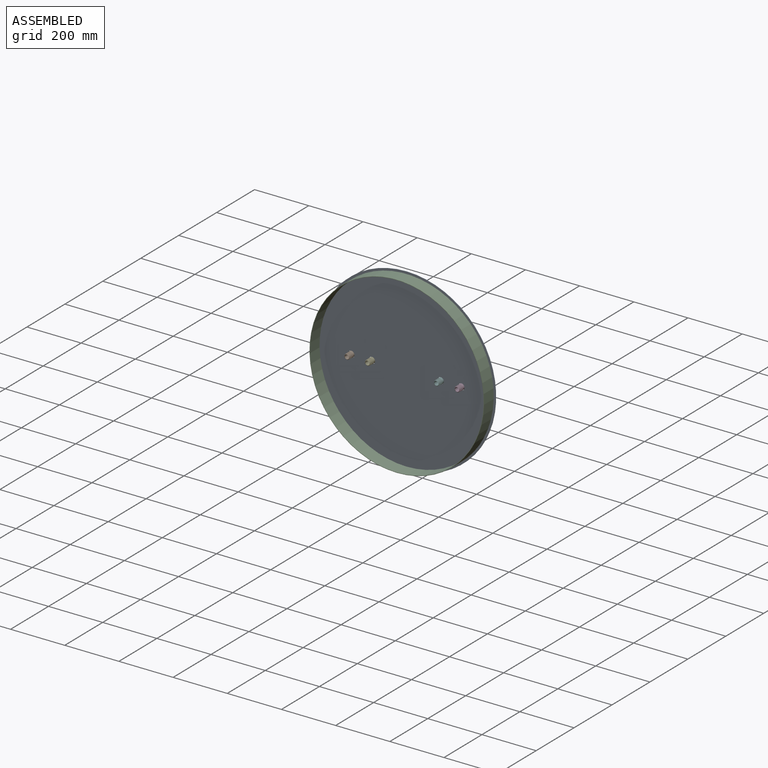
[diagram: assembled view]
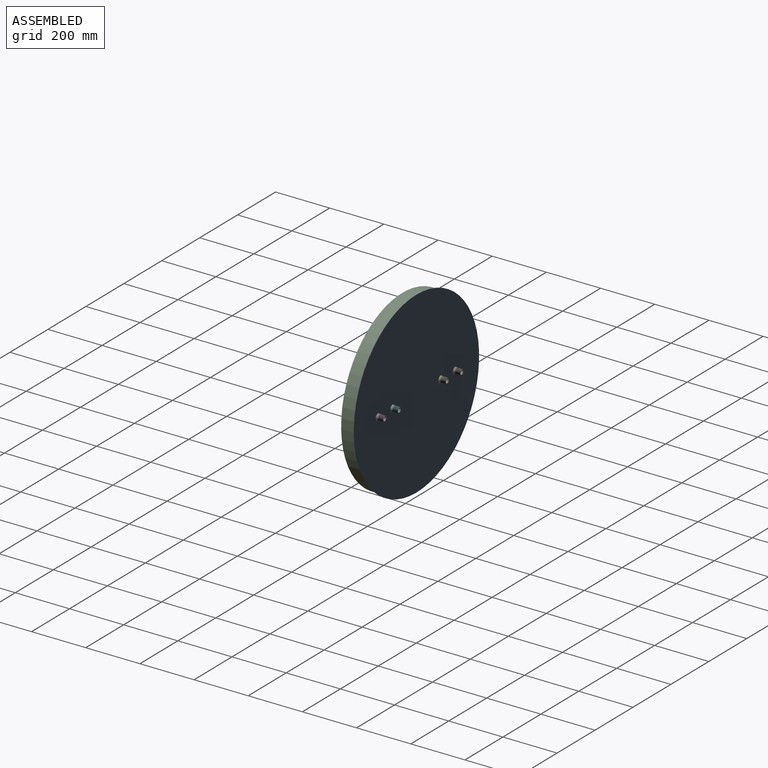
[diagram: assembled view, second angle]
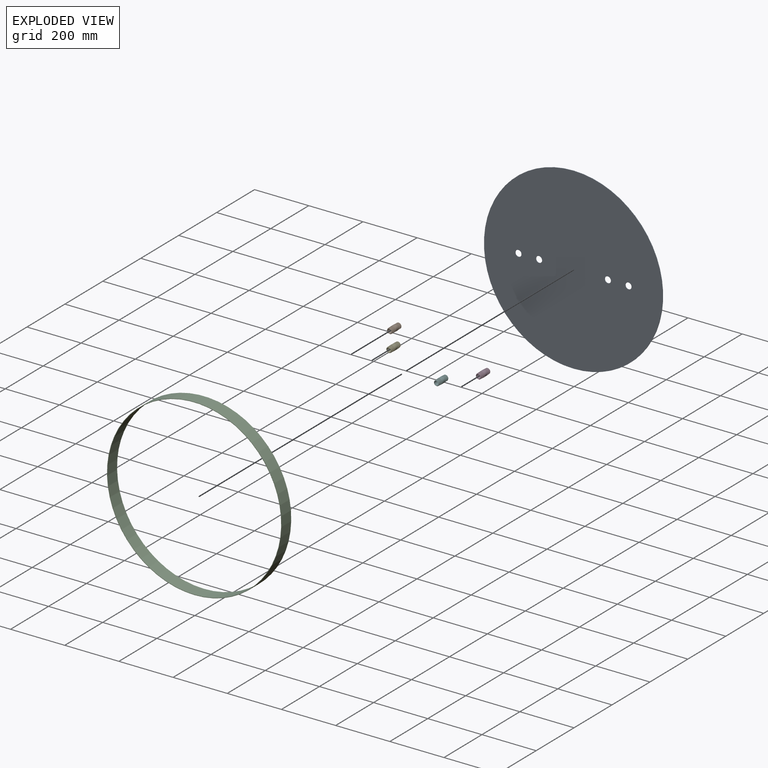
[diagram: exploded view]
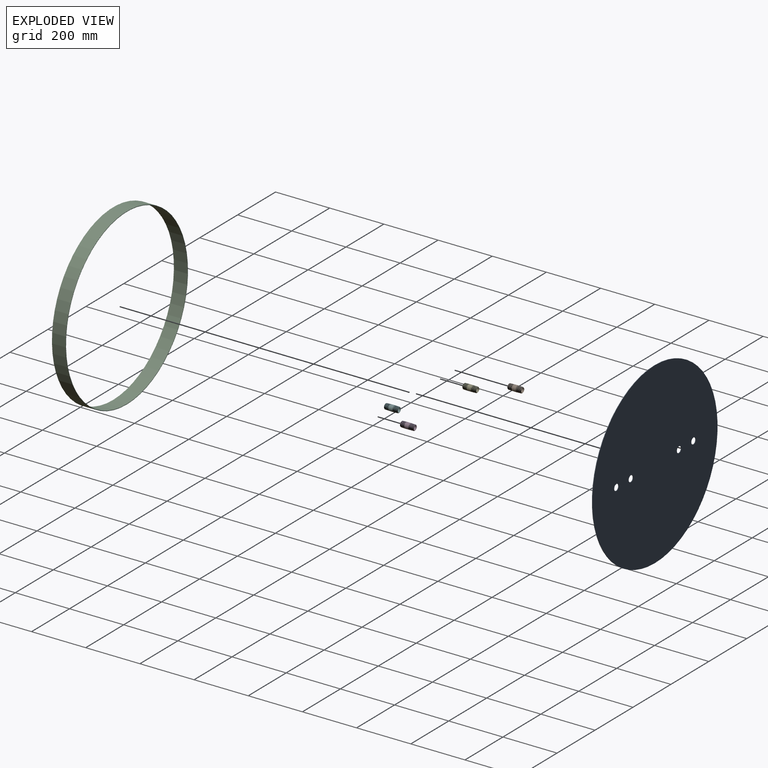
[diagram: exploded view, second angle]
ASSEMBLY  parts=6 mates=7
PART A: 7 faces, bbox 660.4x1.6x660.4 mm
  f0: cylinder r=330.2mm len=660.4mm, axis (0,1,0), area 3293.6mm2, adj f1,f2
  f1: plane 660.4x660.4mm, normal (0,-1,0), area 340892.5mm2, adj f0,f3,f4,f5,f6
  f2: plane 660.4x660.4mm, normal (0,1,0), area 340892.5mm2, adj f0,f3,f4,f5,f6
  f3: cylinder r=11.43mm len=22.86mm, axis (0,1,0), area 114mm2, adj f1,f2
  f4: cylinder r=11.43mm len=22.86mm, axis (0,1,0), area 114mm2, adj f1,f2
  f5: cylinder r=11.43mm len=22.86mm, axis (0,1,0), area 114mm2, adj f1,f2
  f6: cylinder r=11.43mm len=22.86mm, axis (0,1,0), area 114mm2, adj f1,f2
PART B: 20 faces, bbox 51.1x21.4x21.5 mm
  f0: cylinder r=7.9mm len=50.8mm, axis (1,0,0), area 2521.4mm2, adj f8,f14
  f1: cone r=10.67mm half-angle=15deg, axis (1,0,0), area 170.6mm2, adj f4,f15,f16,f17,f18
  f2: cone r=8.18mm half-angle=46.8deg, axis (1,0,0), area 99.9mm2, adj f3,f14,f15,f16,f17,f18,f19
  f3: cone r=10.67mm half-angle=1.8deg, axis (1,0,0), area 128.3mm2, adj f2,f4,f15,f18,f19
  f4: cylinder r=10.67mm len=21.34mm, axis (1,0,0), area 744mm2, adj f1,f3,f5,f7
  f5: cone r=10.67mm half-angle=15deg, axis (-1,0,0), area 170.6mm2, adj f4,f9,f10,f11,f12
  f6: cone r=8.18mm half-angle=46.8deg, axis (-1,0,0), area 99.9mm2, adj f7,f8,f9,f10,f11,f12,f13
  f7: cone r=10.67mm half-angle=1.8deg, axis (-1,0,0), area 128.3mm2, adj f4,f6,f9,f12,f13
  f8: plane 16.35x16.35mm, normal (1,0,0), area 14mm2, adj f0,f6
  f9: bspline ~21.44x21.39mm, area 740.4mm2, adj f5,f6,f7,f10,f13
  f10: bspline ~18.7x18.6mm, area 100.8mm2, adj f5,f6,f9,f11
  f11: bspline ~20.99x20.75mm, area 733.7mm2, adj f5,f6,f10,f12
  f12: bspline ~21.44x21.34mm, area 37.6mm2, adj f5,f6,f7,f11
  f13: bspline ~7.51x5.66mm, area 0mm2, adj f6,f7,f9
  f14: plane 16.35x16.35mm, normal (-1,0,0), area 14mm2, adj f0,f2
  f15: bspline ~21.44x21.39mm, area 740.4mm2, adj f1,f2,f3,f16,f19
  f16: bspline ~18.7x18.6mm, area 100.8mm2, adj f1,f2,f15,f17
  f17: bspline ~20.99x20.75mm, area 733.7mm2, adj f1,f2,f16,f18
  f18: bspline ~21.44x21.34mm, area 37.6mm2, adj f1,f2,f3,f17
  f19: bspline ~7.51x5.66mm, area 0mm2, adj f2,f3,f15
PART C: 4 faces, bbox 644.5x50.8x644.5 mm
  f0: cylinder r=320.68mm len=641.35mm, axis (0,1,0), area 102354.9mm2, adj f2,f3
  f1: cylinder r=322.26mm len=644.53mm, axis (0,1,0), area 102861.6mm2, adj f2,f3
  f2: plane 644.53x644.53mm, normal (0,-1,0), area 3206.5mm2, adj f0,f1
  f3: plane 644.53x644.53mm, normal (0,1,0), area 3206.5mm2, adj f0,f1
PART D: same geometry as B
PART E: same geometry as B
PART F: same geometry as B
PLACE A t=(-57.96,0.22,157.13)mm fixed
PLACE B rot(axis=(0.65,0.65,0.38),137.9deg) t=(-261.16,-0.16,157.13)mm
PLACE C t=(-57.96,-1.37,157.13)mm
PLACE D rot(axis=(0.58,0.58,0.58),120deg) t=(145.24,0.22,157.13)mm
PLACE E rot(axis=(0.58,0.58,0.58),120deg) t=(-184.96,-0.57,157.13)mm
PLACE F rot(axis=(0.61,0.61,0.51),126.2deg) t=(69.04,0.33,157.13)mm
MATE cylindrical F.f0 <-> A.f5  axis (0,1,0) through (69.04,-5.22,157.13)mm
MATE cylindrical E.f0 <-> A.f4  axis (0,1,0) through (-184.96,-0.57,157.13)mm
MATE cylindrical B.f0 <-> A.f3  axis (0,1,0) through (-261.16,-5.71,157.13)mm
MATE cylindrical D.f0 <-> A.f6  axis (0,1,0) through (145.24,-5.33,157.13)mm
MATE fastened C.f0 <-> A.f0  axis (0,1,0) through (-57.96,-1.37,157.13)mm
MATE planar D.f0 <-> A.f6  axis (0,1,0) through (145.24,0.22,157.13)mm
MATE cylindrical C.f1 <-> A.f0  axis (0,1,0) through (-57.96,-26.77,157.13)mm
